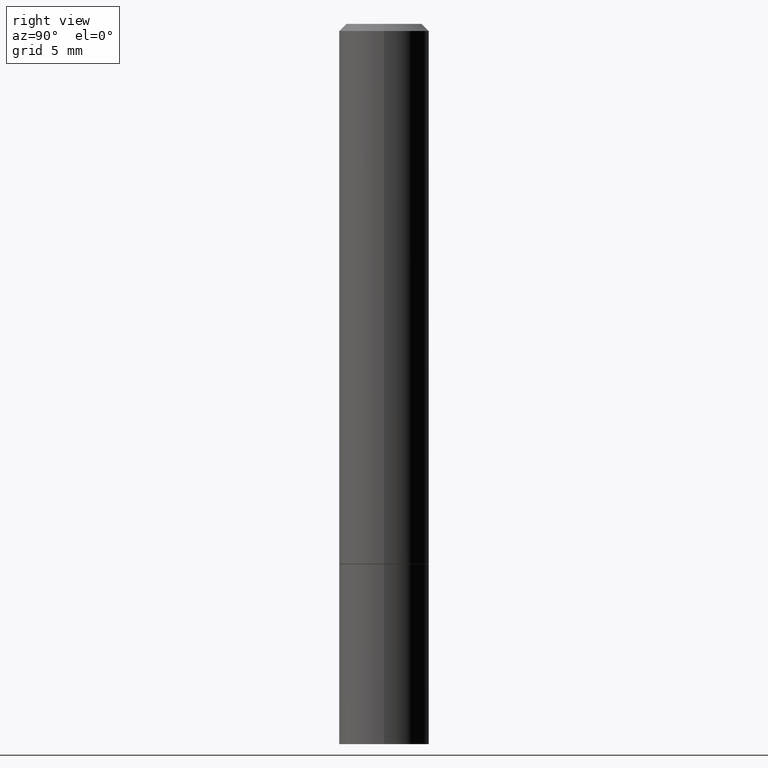
[diagram: clean part render]
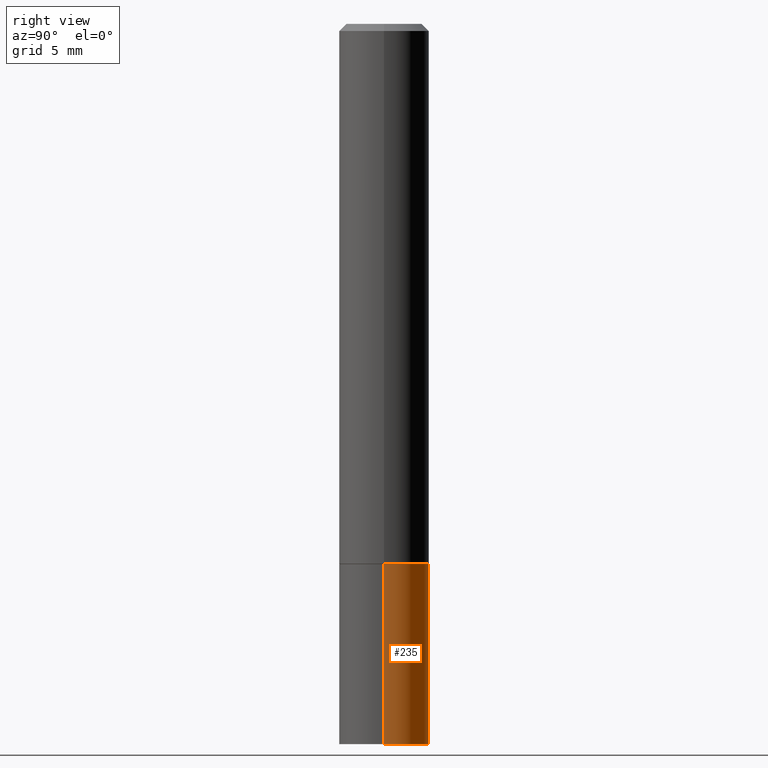
[diagram: same view with one face highlighted and labeled with its STEP entity id]
A machine part, right view. The second image highlights one B-rep face of the part: STEP entity #235.
In plain terms, the highlighted cylindrical surface (partial cylindrical patch) has radius 3.175 mm, axis along (-0, 0, 1).
Its self-contained STEP definition (entity closure, byte-faithful):
#23 = CARTESIAN_POINT ( 'NONE',  ( 3.668203209277704335E-29, -5.237222008264717388E-15, -1.499999999999999778 ) ) ;
#26 = LINE ( 'NONE', #192, #350 ) ;
#31 = CARTESIAN_POINT ( 'NONE',  ( 4.890937612370273194E-29, -6.982962677686291165E-15, -2.000000000000000000 ) ) ;
#41 = ORIENTED_EDGE ( 'NONE', *, *, #123, .T. ) ;
#52 = CARTESIAN_POINT ( 'NONE',  ( -0.1250000000000000000, 8.881784197001252323E-16, -6.148668862818632227E-30 ) ) ;
#71 = ORIENTED_EDGE ( 'NONE', *, *, #182, .T. ) ;
#79 = FACE_OUTER_BOUND ( 'NONE', #155, .T. ) ;
#87 = LINE ( 'NONE', #52, #202 ) ;
#88 = DIRECTION ( 'NONE',  ( 1.000000000000000000, -6.982962677686266711E-15, 4.876176775795935793E-29 ) ) ;
#91 = DIRECTION ( 'NONE',  ( 1.000000000000000000, -6.982962677686270655E-15, 0.000000000000000000 ) ) ;
#96 = AXIS2_PLACEMENT_3D ( 'NONE', #100, #331, #88 ) ;
#100 = CARTESIAN_POINT ( 'NONE',  ( 0.000000000000000000, 0.000000000000000000, 0.000000000000000000 ) ) ;
#108 = DIRECTION ( 'NONE',  ( 1.000000000000000000, -6.982962677686270655E-15, 0.000000000000000000 ) ) ;
#123 = EDGE_CURVE ( 'NONE', #248, #127, #87, .T. ) ;
#125 = EDGE_CURVE ( 'NONE', #353, #127, #348, .T. ) ;
#127 = VERTEX_POINT ( 'NONE', #231 ) ;
#137 = DIRECTION ( 'NONE',  ( -2.445468806185136597E-29, 3.491481338843145583E-15, 1.000000000000000000 ) ) ;
#155 = EDGE_LOOP ( 'NONE', ( #71, #41, #162, #356 ) ) ;
#157 = AXIS2_PLACEMENT_3D ( 'NONE', #31, #317, #91 ) ;
#162 = ORIENTED_EDGE ( 'NONE', *, *, #125, .F. ) ;
#164 = DIRECTION ( 'NONE',  ( -2.445468806185136877E-29, 3.491481338843145188E-15, 1.000000000000000000 ) ) ;
#182 = EDGE_CURVE ( 'NONE', #281, #248, #320, .T. ) ;
#192 = CARTESIAN_POINT ( 'NONE',  ( 0.1250000000000000000, -8.728703347107833388E-16, 6.095220969744919741E-30 ) ) ;
#202 = VECTOR ( 'NONE', #164, 39.37007874015748143 ) ;
#231 = CARTESIAN_POINT ( 'NONE',  ( -0.1250000000000000000, -5.221913923275378650E-15, -1.499999999999999778 ) ) ;
#235 = ADVANCED_FACE ( 'NONE', ( #79 ), #265, .T. ) ;
#237 = CARTESIAN_POINT ( 'NONE',  ( -0.1250000000000000000, -5.221913923275378650E-15, -2.000000000000000000 ) ) ;
#248 = VERTEX_POINT ( 'NONE', #237 ) ;
#249 = EDGE_CURVE ( 'NONE', #281, #353, #26, .T. ) ;
#259 = AXIS2_PLACEMENT_3D ( 'NONE', #23, #137, #108 ) ;
#265 = CYLINDRICAL_SURFACE ( 'NONE', #96, 0.1250000000000000000 ) ;
#281 = VERTEX_POINT ( 'NONE', #347 ) ;
#299 = CARTESIAN_POINT ( 'NONE',  ( 0.1250000000000000000, -6.110092342975501516E-15, -1.499999999999999778 ) ) ;
#307 = DIRECTION ( 'NONE',  ( -2.445468806185136877E-29, 3.491481338843145188E-15, 1.000000000000000000 ) ) ;
#317 = DIRECTION ( 'NONE',  ( -2.445468806185136597E-29, 3.491481338843145583E-15, 1.000000000000000000 ) ) ;
#320 = CIRCLE ( 'NONE', #157, 0.1250000000000000000 ) ;
#331 = DIRECTION ( 'NONE',  ( -2.445468806185136597E-29, 3.491481338843145583E-15, 1.000000000000000000 ) ) ;
#347 = CARTESIAN_POINT ( 'NONE',  ( 0.1250000000000000000, -7.855833012397075293E-15, -2.000000000000000000 ) ) ;
#348 = CIRCLE ( 'NONE', #259, 0.1250000000000000000 ) ;
#350 = VECTOR ( 'NONE', #307, 39.37007874015748143 ) ;
#353 = VERTEX_POINT ( 'NONE', #299 ) ;
#356 = ORIENTED_EDGE ( 'NONE', *, *, #249, .F. ) ;